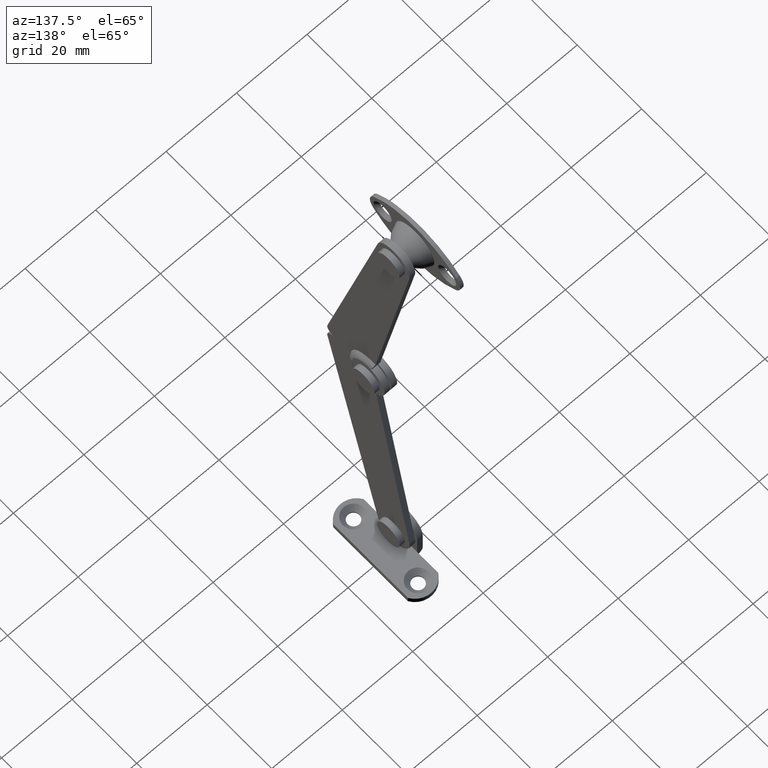
[diagram: clean part render]
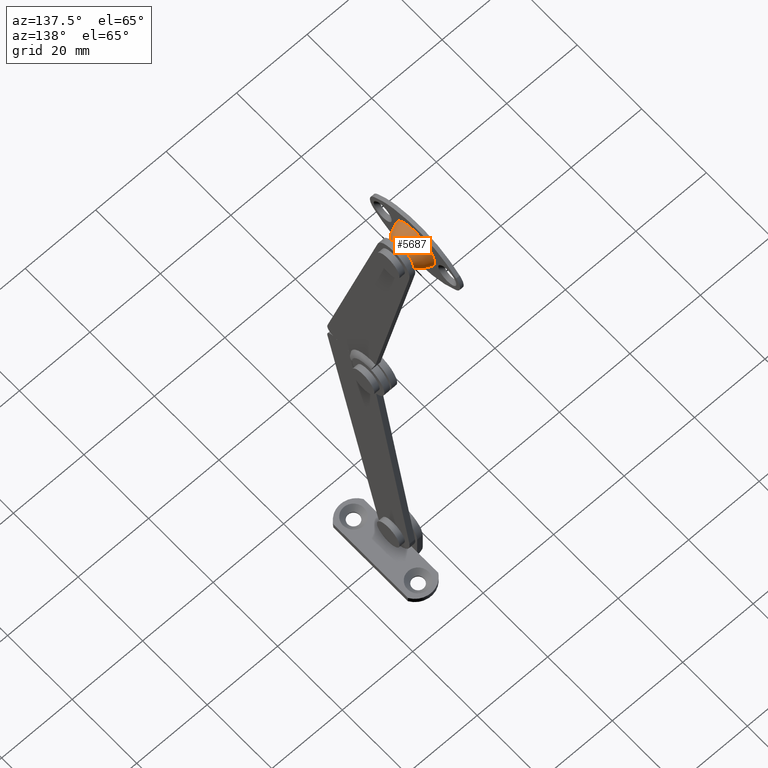
[diagram: same view with one face highlighted and labeled with its STEP entity id]
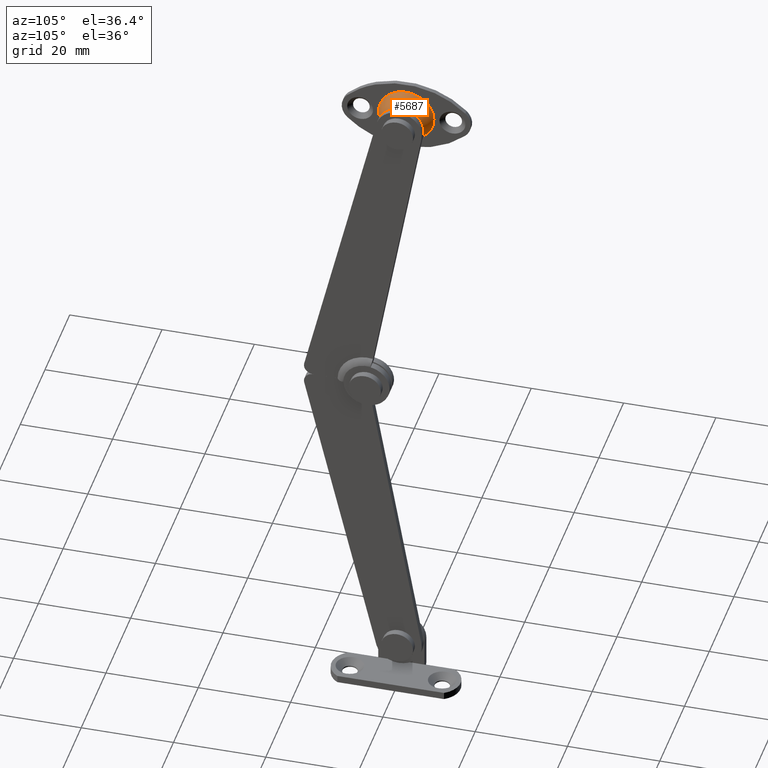
[diagram: same view with one face highlighted and labeled with its STEP entity id]
A machine part, auxiliary view. The second image highlights one B-rep face of the part: STEP entity #5687.
A second angle (auxiliary view) of the same face is appended — the face is thin or edge-on in the first view.
In plain terms, the highlighted face is a freeform B-spline surface patch.
Its self-contained STEP definition (entity closure, byte-faithful):
#5461=CARTESIAN_POINT('',(4.802926537793571,2.039199358328875,69.382197281235250));
#5462=VERTEX_POINT('',#5461);
#5470=CARTESIAN_POINT('',(4.802925919428881,8.143632E-015,70.030636043025694));
#5471=VERTEX_POINT('',#5470);
#5472=CARTESIAN_POINT('',(4.802926537793571,2.039199358328875,69.382197281235250));
#5473=CARTESIAN_POINT('',(4.802926350588141,1.761958749613624,69.578507407734577));
#5474=CARTESIAN_POINT('',(4.802926033674538,1.109495951701999,69.910834100501262));
#5475=CARTESIAN_POINT('',(4.802925919196766,0.385002358297981,70.030879426313135));
#5476=CARTESIAN_POINT('',(4.802925919428881,8.143632E-015,70.030636043025694));
#5477=B_SPLINE_CURVE_WITH_KNOTS('',3,(#5472,#5473,#5474,#5475,#5476),.UNSPECIFIED.,.F.,.U.,(4,1,4),(0.000000035432927,1.019091787385019,2.174030440565142),.UNSPECIFIED.);
#5478=EDGE_CURVE('',#5462,#5471,#5477,.T.);
#5480=CARTESIAN_POINT('',(4.802925918915062,-3.302942985143249,65.252619340340615));
#5481=VERTEX_POINT('',#5480);
#5482=CARTESIAN_POINT('',(4.802925919428881,8.143632E-015,70.030636043025694));
#5483=CARTESIAN_POINT('',(4.802925919456659,-0.319723249282900,70.030726368422350));
#5484=CARTESIAN_POINT('',(4.802925919498638,-0.976923041487853,69.940823076249259));
#5485=CARTESIAN_POINT('',(4.802925919509990,-1.847290669644668,69.557288012544475));
#5486=CARTESIAN_POINT('',(4.802925919474886,-2.571223105674479,68.972819838786251));
#5487=CARTESIAN_POINT('',(4.802925919405747,-3.075608586550272,68.298959267776212));
#5488=CARTESIAN_POINT('',(4.802925919307848,-3.402084333673794,67.544964144425236));
#5489=CARTESIAN_POINT('',(4.802925919207044,-3.530237983800255,66.877824163254559));
#5490=CARTESIAN_POINT('',(4.802925919076520,-3.537025435934704,66.094468087445236));
#5491=CARTESIAN_POINT('',(4.802925918981557,-3.428630311170378,65.584914719912348));
#5492=CARTESIAN_POINT('',(4.802925918915062,-3.302942985143249,65.252619340340615));
#5493=B_SPLINE_CURVE_WITH_KNOTS('',3,(#5482,#5483,#5484,#5485,#5486,#5487,#5488,#5489,#5490,#5491,#5492),.UNSPECIFIED.,.F.,.U.,(4,1,1,1,1,1,1,1,4),(0.000000341691706,0.959169047602298,1.971671743120695,2.824316919553082,3.730108745535867,4.476176146194213,5.275532306367341,5.755146602985604,6.820881728282854),.UNSPECIFIED.);
#5494=EDGE_CURVE('',#5471,#5481,#5493,.T.);
#5496=CARTESIAN_POINT('',(4.802930843498743,8.093281E-015,62.969370589797443));
#5497=VERTEX_POINT('',#5496);
#5509=CARTESIAN_POINT('',(4.802929704476021,2.882194249708510,64.460802786775659));
#5510=VERTEX_POINT('',#5509);
#5511=CARTESIAN_POINT('',(4.802930843498743,8.093281E-015,62.969370589797443));
#5512=CARTESIAN_POINT('',(4.802930843542794,0.280994284045383,62.969312902707543));
#5513=CARTESIAN_POINT('',(4.802930790410249,0.860521050359133,63.038884476507427));
#5514=CARTESIAN_POINT('',(4.802930568069407,1.621055742625626,63.330016769475499));
#5515=CARTESIAN_POINT('',(4.802930208475978,2.325085610175856,63.800867069103219));
#5516=CARTESIAN_POINT('',(4.802929901607271,2.699688231176169,64.202679859068070));
#5517=CARTESIAN_POINT('',(4.802929704476021,2.882194249708510,64.460802786775659));
#5518=B_SPLINE_CURVE_WITH_KNOTS('',3,(#5511,#5512,#5513,#5514,#5515,#5516,#5517),.UNSPECIFIED.,.F.,.U.,(4,1,1,1,4),(0.000000083977958,0.842984947700654,1.738622420073540,2.423579120069254,3.371939538868911),.UNSPECIFIED.);
#5519=EDGE_CURVE('',#5497,#5510,#5518,.T.);
#5561=CARTESIAN_POINT('',(4.802929704476021,2.882194249708510,64.460802786775659));
#5562=CARTESIAN_POINT('',(4.802929529852103,3.065810692473485,64.720123997900387));
#5563=CARTESIAN_POINT('',(4.802929219493432,3.308263561450818,65.185413413823653));
#5564=CARTESIAN_POINT('',(4.802928739911820,3.501927019770724,65.913891165139546));
#5565=CARTESIAN_POINT('',(4.802928230517703,3.561438832788242,66.695318791843548));
#5566=CARTESIAN_POINT('',(4.802927693500647,3.418438599080901,67.529908258576512));
#5567=CARTESIAN_POINT('',(4.802927224182755,3.081068779687420,68.270421442114340));
#5568=CARTESIAN_POINT('',(4.802926841888250,2.640822017035949,68.882298761216930));
#5569=CARTESIAN_POINT('',(4.802926638048739,2.275037253580820,69.215422936012672));
#5570=CARTESIAN_POINT('',(4.802926537793571,2.039199358328875,69.382197281235250));
#5571=B_SPLINE_CURVE_WITH_KNOTS('',3,(#5561,#5562,#5563,#5564,#5565,#5566,#5567,#5568,#5569,#5570),.UNSPECIFIED.,.F.,.U.,(4,1,1,1,1,1,1,4),(0.000000090376888,0.953226635411295,1.559834279195578,2.253102344078963,3.292932532900604,4.072876440087798,4.679498390297633,5.546045501069329),.UNSPECIFIED.);
#5572=EDGE_CURVE('',#5510,#5462,#5571,.T.);
#5578=CARTESIAN_POINT('',(0.786389609557573,-5.654156426673415,64.364666331488351));
#5579=CARTESIAN_POINT('',(3.419881038950355,-5.190379486200317,64.539815096563146));
#5580=CARTESIAN_POINT('',(4.938836760789862,-3.125081482251614,65.319790044291338));
#5581=CARTESIAN_POINT('',(0.786389609557573,-6.043933716808258,65.396758787335500));
#5582=CARTESIAN_POINT('',(3.419881038950353,-5.548185655367963,65.487251125290570));
#5583=CARTESIAN_POINT('',(4.938836760789862,-3.340513405191757,65.890232879322184));
#5584=CARTESIAN_POINT('',(0.786389609557573,-6.043933716808259,66.500000000000000));
#5585=CARTESIAN_POINT('',(3.419881038950354,-5.548185655367965,66.500000000000000));
#5586=CARTESIAN_POINT('',(4.938836760789862,-3.340513405191758,66.500000000000014));
#5587=CARTESIAN_POINT('',(0.786389609557573,-6.043933716808260,72.543933716808269));
#5588=CARTESIAN_POINT('',(3.419881038950355,-5.548185655367964,72.048185655367959));
#5589=CARTESIAN_POINT('',(4.938836760789862,-3.340513405191756,69.840513405191771));
#5590=CARTESIAN_POINT('',(0.786389609557573,8.143632E-015,72.543933716808269));
#5591=CARTESIAN_POINT('',(3.419881038950354,8.143632E-015,72.048185655367959));
#5592=CARTESIAN_POINT('',(4.938836760789862,8.143632E-015,69.840513405191786));
#5593=CARTESIAN_POINT('',(0.786389609557573,6.043933716808276,72.543933716808269));
#5594=CARTESIAN_POINT('',(3.419881038950355,5.548185655367982,72.048185655367959));
#5595=CARTESIAN_POINT('',(4.938836760789862,3.340513405191774,69.840513405191771));
#5596=CARTESIAN_POINT('',(0.786389609557573,6.043933716808273,66.500000000000000));
#5597=CARTESIAN_POINT('',(3.419881038950354,5.548185655367980,66.500000000000000));
#5598=CARTESIAN_POINT('',(4.938836760789862,3.340513405191773,66.500000000000014));
#5599=CARTESIAN_POINT('',(0.786389609557573,6.043933716808276,60.456066283191738));
#5600=CARTESIAN_POINT('',(3.419881038950355,5.548185655367982,60.951814344632041));
#5601=CARTESIAN_POINT('',(4.938836760789862,3.340513405191774,63.159486594808250));
#5602=CARTESIAN_POINT('',(0.786389609557573,8.143632E-015,60.456066283191745));
#5603=CARTESIAN_POINT('',(3.419881038950354,8.143632E-015,60.951814344632034));
#5604=CARTESIAN_POINT('',(4.938836760789862,8.143632E-015,63.159486594808243));
#5612=(BOUNDED_SURFACE()B_SPLINE_SURFACE(2,2,((#5578,#5581,#5584,#5587,#5590,#5593,#5596,#5599,#5602),(#5579,#5582,#5585,#5588,#5591,#5594,#5597,#5600,#5603),(#5580,#5583,#5586,#5589,#5592,#5595,#5598,#5601,#5604)),.UNSPECIFIED.,.F.,.F.,.U.)B_SPLINE_SURFACE_WITH_KNOTS((3,3),(3,2,2,2,3),(0.0,5.147531560545916),(0.0,2.403340142962573,12.417257405306620,22.431174667650680,32.445091929994732),.UNSPECIFIED.)GEOMETRIC_REPRESENTATION_ITEM()RATIONAL_B_SPLINE_SURFACE(((0.837446970119794,0.871720242581275,0.937630381930278,0.663004801309432,0.937630381930278,0.663004801309432,0.937630381930278,0.663004801309432,0.937630381930278),(0.746769649371206,0.777331870708282,0.836105373279581,0.591215779232501,0.836105373279581,0.591215779232501,0.836105373279581,0.591215779232501,0.836105373279581),(0.779092574416410,0.810977640609761,0.872295075596974,0.616805763150252,0.872295075596974,0.616805763150252,0.872295075596974,0.616805763150252,0.872295075596974)))REPRESENTATION_ITEM('')SURFACE());
#5613=ORIENTED_EDGE('',*,*,#5494,.F.);
#5614=ORIENTED_EDGE('',*,*,#5478,.F.);
#5615=ORIENTED_EDGE('',*,*,#5572,.F.);
#5616=ORIENTED_EDGE('',*,*,#5519,.F.);
#5617=CARTESIAN_POINT('',(0.999997755323442,8.105205E-015,60.500000084918170));
#5618=VERTEX_POINT('',#5617);
#5619=CARTESIAN_POINT('',(0.999997755323442,8.105205E-015,60.500000084918170));
#5620=CARTESIAN_POINT('',(1.541552168721460,8.079216E-015,60.620742220166640));
#5621=CARTESIAN_POINT('',(2.570476329049996,8.044952E-015,60.993821371304620));
#5622=CARTESIAN_POINT('',(3.855893171647038,8.045264E-015,61.869767388694370));
#5623=CARTESIAN_POINT('',(4.529763881806849,8.074078E-015,62.601321361881233));
#5624=CARTESIAN_POINT('',(4.802930843498743,8.093281E-015,62.969370589797443));
#5625=B_SPLINE_CURVE_WITH_KNOTS('',3,(#5619,#5620,#5621,#5622,#5623,#5624),.UNSPECIFIED.,.F.,.U.,(4,1,1,4),(0.000000035950272,1.664526550437357,3.256672021910874,4.631717430871935),.UNSPECIFIED.);
#5626=EDGE_CURVE('',#5618,#5497,#5625,.T.);
#5627=ORIENTED_EDGE('',*,*,#5626,.F.);
#5628=CARTESIAN_POINT('',(0.999998877661367,5.999999414019548,66.499997854621469));
#5629=VERTEX_POINT('',#5628);
#5630=CARTESIAN_POINT('',(0.999998877661367,5.999999414019548,66.499997854621469));
#5631=CARTESIAN_POINT('',(0.999998753693538,6.000384410235652,65.837268134614135));
#5632=CARTESIAN_POINT('',(0.999998551737295,5.819233731318496,64.757613808503166));
#5633=CARTESIAN_POINT('',(0.999998321574297,5.246274599582001,63.527166668423952));
#5634=CARTESIAN_POINT('',(0.999998162887440,4.656539807527774,62.678829673960607));
#5635=CARTESIAN_POINT('',(0.999998016033263,3.909200717865327,61.893749958147872));
#5636=CARTESIAN_POINT('',(0.999997886753402,2.915003724486798,61.202622223430843));
#5637=CARTESIAN_POINT('',(0.999997782600191,1.570647707847757,60.645821071906489));
#5638=CARTESIAN_POINT('',(0.999997755273300,0.589080878238547,60.499732027267953));
#5639=CARTESIAN_POINT('',(0.999997755323442,8.105205E-015,60.500000084918170));
#5640=B_SPLINE_CURVE_WITH_KNOTS('',3,(#5630,#5631,#5632,#5633,#5634,#5635,#5636,#5637,#5638,#5639),.UNSPECIFIED.,.F.,.U.,(4,1,1,1,1,1,1,4),(0.000000185758697,1.988050097480199,3.239790416018268,4.049778372235924,5.080569401675607,6.479560795742901,7.657692334471515,9.424835361154885),.UNSPECIFIED.);
#5641=EDGE_CURVE('',#5629,#5618,#5640,.T.);
#5642=ORIENTED_EDGE('',*,*,#5641,.F.);
#5643=CARTESIAN_POINT('',(1.0,8.143632E-015,72.499999414019840));
#5644=VERTEX_POINT('',#5643);
#5645=CARTESIAN_POINT('',(1.0,8.143632E-015,72.499999414019840));
#5646=CARTESIAN_POINT('',(1.000000000100600,0.711852841035876,72.500537205390728));
#5647=CARTESIAN_POINT('',(0.999999963626332,1.791376343410762,72.305546470480579));
#5648=CARTESIAN_POINT('',(0.999999855746362,2.990969751296743,71.728822141255193));
#5649=CARTESIAN_POINT('',(0.999999728274681,3.984679589457389,71.047360876611819));
#5650=CARTESIAN_POINT('',(0.999999550135390,4.891370534359883,70.095031527167095));
#5651=CARTESIAN_POINT('',(0.999999310385979,5.586377800385834,68.813335655735926));
#5652=CARTESIAN_POINT('',(0.999999088847781,5.929761204821519,67.628996454954901));
#5653=CARTESIAN_POINT('',(0.999998946527303,6.000030045539234,66.868153935925989));
#5654=CARTESIAN_POINT('',(0.999998877661367,5.999999414019548,66.499997854621469));
#5655=B_SPLINE_CURVE_WITH_KNOTS('',3,(#5645,#5646,#5647,#5648,#5649,#5650,#5651,#5652,#5653,#5654),.UNSPECIFIED.,.F.,.U.,(4,1,1,1,1,1,1,4),(0.000000185106758,2.135311354090273,3.239791149050210,3.976109664345786,5.743225851521278,7.142261509002870,8.320364786081580,9.424837497103159),.UNSPECIFIED.);
#5656=EDGE_CURVE('',#5644,#5629,#5655,.T.);
#5657=ORIENTED_EDGE('',*,*,#5656,.F.);
#5658=CARTESIAN_POINT('',(1.000005409467977,-5.613057968352360,64.380198423961517));
#5659=VERTEX_POINT('',#5658);
#5660=CARTESIAN_POINT('',(1.000005409467977,-5.613057968352360,64.380198423961517));
#5661=CARTESIAN_POINT('',(1.000005268407389,-5.773114031066080,64.803761296003174));
#5662=CARTESIAN_POINT('',(1.000005005472535,-5.951858613037090,65.510600791923480));
#5663=CARTESIAN_POINT('',(1.000004499286813,-6.030651414251231,66.687956859500005));
#5664=CARTESIAN_POINT('',(1.000003985303207,-5.909361791707148,67.744298153821788));
#5665=CARTESIAN_POINT('',(1.000003333976990,-5.529842696747148,68.926802068190938));
#5666=CARTESIAN_POINT('',(1.000002754114411,-5.013834976435291,69.856424004004495));
#5667=CARTESIAN_POINT('',(1.000002142746123,-4.303080534330690,70.721311382624236));
#5668=CARTESIAN_POINT('',(1.000001643356693,-3.594268877580630,71.339135641312396));
#5669=CARTESIAN_POINT('',(1.000001112301938,-2.691951700022394,71.893437338880034));
#5670=CARTESIAN_POINT('',(1.000000542620455,-1.539371708862448,72.360424351157434));
#5671=CARTESIAN_POINT('',(1.000000178633565,-0.573547803231116,72.500213116567906));
#5672=CARTESIAN_POINT('',(1.0,8.143632E-015,72.499999414019840));
#5673=B_SPLINE_CURVE_WITH_KNOTS('',3,(#5660,#5661,#5662,#5663,#5664,#5665,#5666,#5667,#5668,#5669,#5670,#5671,#5672),.UNSPECIFIED.,.F.,.U.,(4,1,1,1,1,1,1,1,1,1,4),(0.000000262255055,1.358373022613467,2.173381032652211,3.531792834260896,4.527960448058725,5.886239933354138,6.701263354899728,7.878573213453848,8.693599462701311,9.870870412991982,11.591465872910490),.UNSPECIFIED.);
#5674=EDGE_CURVE('',#5659,#5644,#5673,.T.);
#5675=ORIENTED_EDGE('',*,*,#5674,.F.);
#5676=CARTESIAN_POINT('',(1.000005409467977,-5.613057968352360,64.380198423961517));
#5677=CARTESIAN_POINT('',(1.376709525732713,-5.534411038669246,64.409899139770104));
#5678=CARTESIAN_POINT('',(2.207393314930323,-5.286608482094176,64.503481561085380));
#5679=CARTESIAN_POINT('',(3.563926108047340,-4.578368265618837,64.770949929725617));
#5680=CARTESIAN_POINT('',(4.400553126569998,-3.810529893417777,65.060926949378853));
#5681=CARTESIAN_POINT('',(4.802925918915062,-3.302942985143249,65.252619340340615));
#5682=B_SPLINE_CURVE_WITH_KNOTS('',3,(#5676,#5677,#5678,#5679,#5680,#5681),.UNSPECIFIED.,.F.,.U.,(4,1,1,4),(0.000000035951560,1.157925358555355,2.605316125588929,4.631701326367604),.UNSPECIFIED.);
#5683=EDGE_CURVE('',#5659,#5481,#5682,.T.);
#5684=ORIENTED_EDGE('',*,*,#5683,.T.);
#5685=EDGE_LOOP('',(#5613,#5614,#5615,#5616,#5627,#5642,#5657,#5675,#5684));
#5686=FACE_OUTER_BOUND('',#5685,.T.);
#5687=ADVANCED_FACE('',(#5686),#5612,.T.);